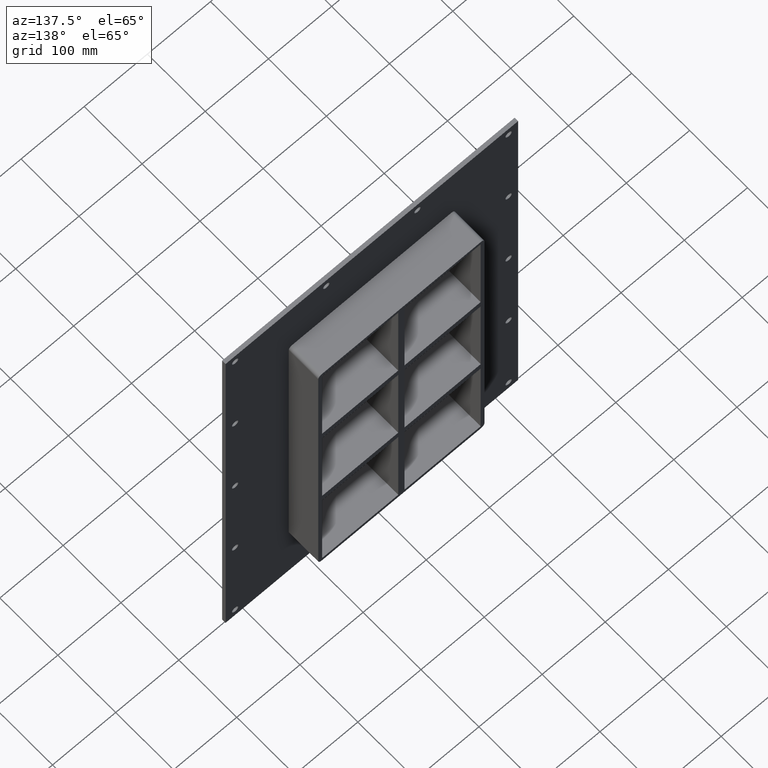
[diagram: clean part render]
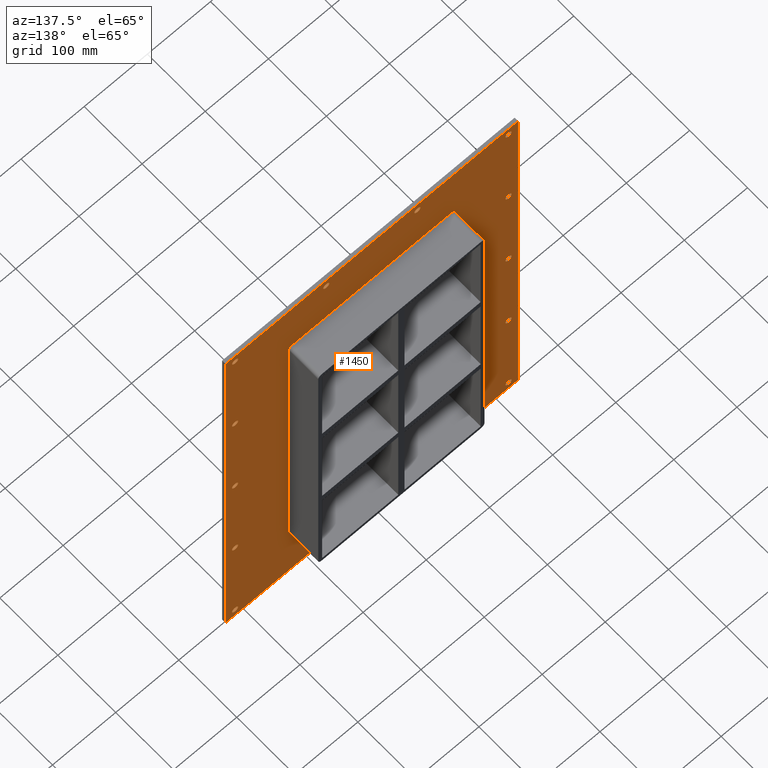
[diagram: same view with one face highlighted and labeled with its STEP entity id]
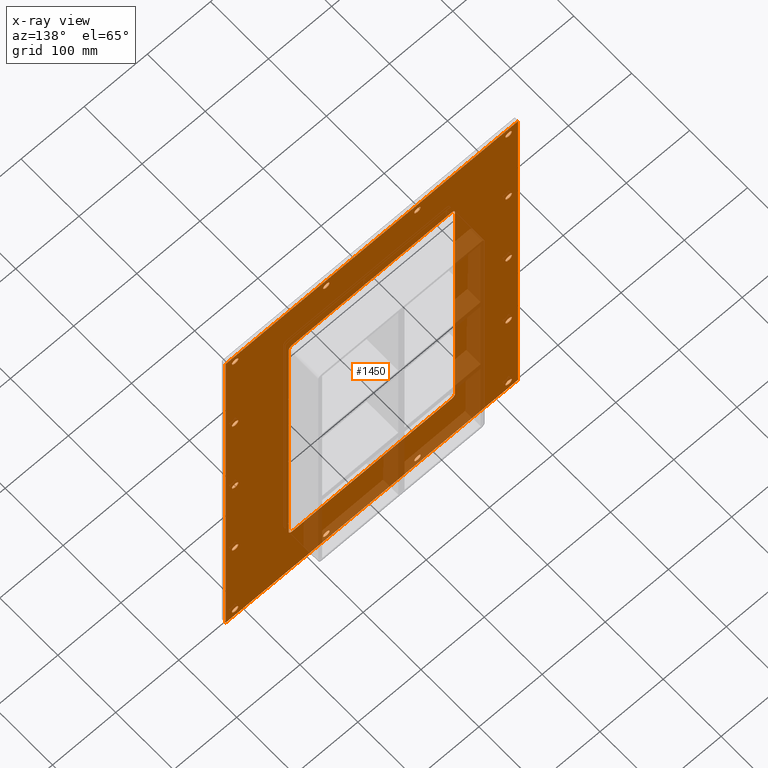
[diagram: x-ray of the same camera — body ghosted, the highlighted face saturated]
A machine part, auxiliary view. The second image highlights one B-rep face of the part: STEP entity #1450.
The next image is the same camera in x-ray: the body ghosted, the highlighted face saturated — about 16% of this face is hidden behind the body in this view.
In plain terms, the highlighted planar face has unit normal (0, 1, 0).
Its self-contained STEP definition (entity closure, byte-faithful):
#73=CARTESIAN_POINT('',(-221.50000000000009,5.999999999999943,-342.24999999999994));
#74=VERTEX_POINT('',#73);
#75=CARTESIAN_POINT('',(-216.50000000000009,5.999999999999943,-342.24999999999994));
#76=DIRECTION('',(0.0,-1.0,0.0));
#77=DIRECTION('',(1.0,0.0,0.0));
#78=AXIS2_PLACEMENT_3D('',#75,#76,#77);
#79=CIRCLE('',#78,5.0);
#80=EDGE_CURVE('',#74,#74,#79,.T.);
#101=CARTESIAN_POINT('',(211.39999999999998,5.999999999999943,-171.14999999999995));
#102=VERTEX_POINT('',#101);
#103=CARTESIAN_POINT('',(216.39999999999998,5.999999999999943,-171.14999999999995));
#104=DIRECTION('',(0.0,-1.0,0.0));
#105=DIRECTION('',(1.0,0.0,0.0));
#106=AXIS2_PLACEMENT_3D('',#103,#104,#105);
#107=CIRCLE('',#106,5.0);
#108=EDGE_CURVE('',#102,#102,#107,.T.);
#129=CARTESIAN_POINT('',(-221.50000000000009,5.999999999999943,-171.14999999999995));
#130=VERTEX_POINT('',#129);
#131=CARTESIAN_POINT('',(-216.50000000000009,5.999999999999943,-171.14999999999995));
#132=DIRECTION('',(0.0,-1.0,0.0));
#133=DIRECTION('',(1.0,0.0,0.0));
#134=AXIS2_PLACEMENT_3D('',#131,#132,#133);
#135=CIRCLE('',#134,5.0);
#136=EDGE_CURVE('',#130,#130,#135,.T.);
#157=CARTESIAN_POINT('',(211.39999999999998,5.999999999999943,-0.049999999999955));
#158=VERTEX_POINT('',#157);
#159=CARTESIAN_POINT('',(216.39999999999998,5.999999999999943,-0.049999999999955));
#160=DIRECTION('',(0.0,-1.0,0.0));
#161=DIRECTION('',(1.0,0.0,0.0));
#162=AXIS2_PLACEMENT_3D('',#159,#160,#161);
#163=CIRCLE('',#162,5.0);
#164=EDGE_CURVE('',#158,#158,#163,.T.);
#185=CARTESIAN_POINT('',(-221.50000000000009,5.999999999999943,-0.049999999999955));
#186=VERTEX_POINT('',#185);
#187=CARTESIAN_POINT('',(-216.50000000000009,5.999999999999943,-0.049999999999955));
#188=DIRECTION('',(0.0,-1.0,0.0));
#189=DIRECTION('',(1.0,0.0,0.0));
#190=AXIS2_PLACEMENT_3D('',#187,#188,#189);
#191=CIRCLE('',#190,5.0);
#192=EDGE_CURVE('',#186,#186,#191,.T.);
#213=CARTESIAN_POINT('',(211.39999999999998,5.999999999999943,171.05000000000004));
#214=VERTEX_POINT('',#213);
#215=CARTESIAN_POINT('',(216.39999999999998,5.999999999999943,171.05000000000004));
#216=DIRECTION('',(0.0,-1.0,0.0));
#217=DIRECTION('',(1.0,0.0,0.0));
#218=AXIS2_PLACEMENT_3D('',#215,#216,#217);
#219=CIRCLE('',#218,5.0);
#220=EDGE_CURVE('',#214,#214,#219,.T.);
#241=CARTESIAN_POINT('',(-221.50000000000009,5.999999999999943,171.05000000000004));
#242=VERTEX_POINT('',#241);
#243=CARTESIAN_POINT('',(-216.50000000000009,5.999999999999943,171.05000000000004));
#244=DIRECTION('',(0.0,-1.0,0.0));
#245=DIRECTION('',(1.0,0.0,0.0));
#246=AXIS2_PLACEMENT_3D('',#243,#244,#245);
#247=CIRCLE('',#246,5.0);
#248=EDGE_CURVE('',#242,#242,#247,.T.);
#269=CARTESIAN_POINT('',(-77.20000000000006,5.999999999999943,342.15000000000003));
#270=VERTEX_POINT('',#269);
#271=CARTESIAN_POINT('',(-72.20000000000006,5.999999999999943,342.15000000000003));
#272=DIRECTION('',(0.0,-1.0,0.0));
#273=DIRECTION('',(1.0,0.0,0.0));
#274=AXIS2_PLACEMENT_3D('',#271,#272,#273);
#275=CIRCLE('',#274,5.0);
#276=EDGE_CURVE('',#270,#270,#275,.T.);
#297=CARTESIAN_POINT('',(-77.20000000000006,5.999999999999943,-342.24999999999994));
#298=VERTEX_POINT('',#297);
#299=CARTESIAN_POINT('',(-72.20000000000006,5.999999999999943,-342.24999999999994));
#300=DIRECTION('',(0.0,-1.0,0.0));
#301=DIRECTION('',(1.0,0.0,0.0));
#302=AXIS2_PLACEMENT_3D('',#299,#300,#301);
#303=CIRCLE('',#302,5.0);
#304=EDGE_CURVE('',#298,#298,#303,.T.);
#325=CARTESIAN_POINT('',(67.099999999999952,5.999999999999943,342.15000000000003));
#326=VERTEX_POINT('',#325);
#327=CARTESIAN_POINT('',(72.099999999999952,5.999999999999943,342.15000000000003));
#328=DIRECTION('',(0.0,-1.0,0.0));
#329=DIRECTION('',(1.0,0.0,0.0));
#330=AXIS2_PLACEMENT_3D('',#327,#328,#329);
#331=CIRCLE('',#330,5.0);
#332=EDGE_CURVE('',#326,#326,#331,.T.);
#353=CARTESIAN_POINT('',(67.099999999999952,5.999999999999943,-342.24999999999994));
#354=VERTEX_POINT('',#353);
#355=CARTESIAN_POINT('',(72.099999999999952,5.999999999999943,-342.24999999999994));
#356=DIRECTION('',(0.0,-1.0,0.0));
#357=DIRECTION('',(1.0,0.0,0.0));
#358=AXIS2_PLACEMENT_3D('',#355,#356,#357);
#359=CIRCLE('',#358,5.0);
#360=EDGE_CURVE('',#354,#354,#359,.T.);
#381=CARTESIAN_POINT('',(211.39999999999998,5.999999999999943,-342.24999999999994));
#382=VERTEX_POINT('',#381);
#383=CARTESIAN_POINT('',(216.39999999999998,5.999999999999943,-342.24999999999994));
#384=DIRECTION('',(0.0,-1.0,0.0));
#385=DIRECTION('',(1.0,0.0,0.0));
#386=AXIS2_PLACEMENT_3D('',#383,#384,#385);
#387=CIRCLE('',#386,5.0);
#388=EDGE_CURVE('',#382,#382,#387,.T.);
#409=CARTESIAN_POINT('',(-221.50000000000009,5.999999999999943,342.15000000000003));
#410=VERTEX_POINT('',#409);
#411=CARTESIAN_POINT('',(-216.50000000000009,5.999999999999943,342.15000000000003));
#412=DIRECTION('',(0.0,-1.0,0.0));
#413=DIRECTION('',(1.0,0.0,0.0));
#414=AXIS2_PLACEMENT_3D('',#411,#412,#413);
#415=CIRCLE('',#414,5.0);
#416=EDGE_CURVE('',#410,#410,#415,.T.);
#437=CARTESIAN_POINT('',(211.39999999999998,5.999999999999943,342.15000000000003));
#438=VERTEX_POINT('',#437);
#439=CARTESIAN_POINT('',(216.39999999999998,5.999999999999943,342.15000000000003));
#440=DIRECTION('',(0.0,-1.0,0.0));
#441=DIRECTION('',(1.0,0.0,0.0));
#442=AXIS2_PLACEMENT_3D('',#439,#440,#441);
#443=CIRCLE('',#442,5.0);
#444=EDGE_CURVE('',#438,#438,#443,.T.);
#1299=CARTESIAN_POINT('',(-1.448240E-014,6.000000000000001,2.896480E-014));
#1300=DIRECTION('',(0.0,1.0,0.0));
#1301=DIRECTION('',(0.0,0.0,1.0));
#1302=AXIS2_PLACEMENT_3D('',#1299,#1300,#1301);
#1303=PLANE('',#1302);
#1304=CARTESIAN_POINT('',(-231.50000000000003,6.000000000000001,357.25));
#1305=VERTEX_POINT('',#1304);
#1306=CARTESIAN_POINT('',(231.49999999999994,6.000000000000001,357.25));
#1307=VERTEX_POINT('',#1306);
#1308=CARTESIAN_POINT('',(-231.50000000000003,6.000000000000001,357.25));
#1309=DIRECTION('',(1.0,0.0,0.0));
#1310=VECTOR('',#1309,463.0);
#1311=LINE('',#1308,#1310);
#1312=EDGE_CURVE('',#1305,#1307,#1311,.T.);
#1313=ORIENTED_EDGE('',*,*,#1312,.T.);
#1314=CARTESIAN_POINT('',(231.49999999999994,6.000000000000001,-357.24999999999989));
#1315=VERTEX_POINT('',#1314);
#1316=CARTESIAN_POINT('',(231.5,6.000000000000001,357.25));
#1317=DIRECTION('',(0.0,0.0,-1.0));
#1318=VECTOR('',#1317,714.49999999999989);
#1319=LINE('',#1316,#1318);
#1320=EDGE_CURVE('',#1307,#1315,#1319,.T.);
#1321=ORIENTED_EDGE('',*,*,#1320,.T.);
#1322=CARTESIAN_POINT('',(-231.50000000000003,6.000000000000001,-357.24999999999989));
#1323=VERTEX_POINT('',#1322);
#1324=CARTESIAN_POINT('',(231.5,6.000000000000001,-357.24999999999994));
#1325=DIRECTION('',(-1.0,0.0,0.0));
#1326=VECTOR('',#1325,463.0);
#1327=LINE('',#1324,#1326);
#1328=EDGE_CURVE('',#1315,#1323,#1327,.T.);
#1329=ORIENTED_EDGE('',*,*,#1328,.T.);
#1330=CARTESIAN_POINT('',(-231.50000000000003,6.000000000000001,-357.24999999999994));
#1331=DIRECTION('',(0.0,0.0,1.0));
#1332=VECTOR('',#1331,714.49999999999989);
#1333=LINE('',#1330,#1332);
#1334=EDGE_CURVE('',#1323,#1305,#1333,.T.);
#1335=ORIENTED_EDGE('',*,*,#1334,.T.);
#1336=EDGE_LOOP('',(#1313,#1321,#1329,#1335));
#1337=FACE_OUTER_BOUND('',#1336,.T.);
#1338=ORIENTED_EDGE('',*,*,#80,.T.);
#1339=EDGE_LOOP('',(#1338));
#1340=FACE_BOUND('',#1339,.T.);
#1341=ORIENTED_EDGE('',*,*,#108,.T.);
#1342=EDGE_LOOP('',(#1341));
#1343=FACE_BOUND('',#1342,.T.);
#1344=ORIENTED_EDGE('',*,*,#136,.T.);
#1345=EDGE_LOOP('',(#1344));
#1346=FACE_BOUND('',#1345,.T.);
#1347=ORIENTED_EDGE('',*,*,#164,.T.);
#1348=EDGE_LOOP('',(#1347));
#1349=FACE_BOUND('',#1348,.T.);
#1350=ORIENTED_EDGE('',*,*,#192,.T.);
#1351=EDGE_LOOP('',(#1350));
#1352=FACE_BOUND('',#1351,.T.);
#1353=ORIENTED_EDGE('',*,*,#220,.T.);
#1354=EDGE_LOOP('',(#1353));
#1355=FACE_BOUND('',#1354,.T.);
#1356=ORIENTED_EDGE('',*,*,#248,.T.);
#1357=EDGE_LOOP('',(#1356));
#1358=FACE_BOUND('',#1357,.T.);
#1359=ORIENTED_EDGE('',*,*,#276,.T.);
#1360=EDGE_LOOP('',(#1359));
#1361=FACE_BOUND('',#1360,.T.);
#1362=ORIENTED_EDGE('',*,*,#304,.T.);
#1363=EDGE_LOOP('',(#1362));
#1364=FACE_BOUND('',#1363,.T.);
#1365=ORIENTED_EDGE('',*,*,#332,.T.);
#1366=EDGE_LOOP('',(#1365));
#1367=FACE_BOUND('',#1366,.T.);
#1368=ORIENTED_EDGE('',*,*,#360,.T.);
#1369=EDGE_LOOP('',(#1368));
#1370=FACE_BOUND('',#1369,.T.);
#1371=ORIENTED_EDGE('',*,*,#388,.T.);
#1372=EDGE_LOOP('',(#1371));
#1373=FACE_BOUND('',#1372,.T.);
#1374=ORIENTED_EDGE('',*,*,#416,.T.);
#1375=EDGE_LOOP('',(#1374));
#1376=FACE_BOUND('',#1375,.T.);
#1377=ORIENTED_EDGE('',*,*,#444,.T.);
#1378=EDGE_LOOP('',(#1377));
#1379=FACE_BOUND('',#1378,.T.);
#1380=CARTESIAN_POINT('',(-125.5,6.000000000000001,-257.25));
#1381=VERTEX_POINT('',#1380);
#1382=CARTESIAN_POINT('',(-131.5,6.000000000000001,-251.25));
#1383=VERTEX_POINT('',#1382);
#1384=CARTESIAN_POINT('',(-125.5,6.000000000000001,-251.25));
#1385=DIRECTION('',(0.0,1.0,0.0));
#1386=DIRECTION('',(-0.707106781186548,0.0,-0.707106781186548));
#1387=AXIS2_PLACEMENT_3D('',#1384,#1385,#1386);
#1388=CIRCLE('',#1387,6.000000000000002);
#1389=EDGE_CURVE('',#1381,#1383,#1388,.T.);
#1390=ORIENTED_EDGE('',*,*,#1389,.F.);
#1391=CARTESIAN_POINT('',(125.5,6.000000000000001,-257.25));
#1392=VERTEX_POINT('',#1391);
#1393=CARTESIAN_POINT('',(125.50000000000001,6.000000000000001,-257.25));
#1394=DIRECTION('',(-1.0,0.0,0.0));
#1395=VECTOR('',#1394,251.0);
#1396=LINE('',#1393,#1395);
#1397=EDGE_CURVE('',#1392,#1381,#1396,.T.);
#1398=ORIENTED_EDGE('',*,*,#1397,.F.);
#1399=CARTESIAN_POINT('',(131.5,6.000000000000001,-251.25));
#1400=VERTEX_POINT('',#1399);
#1401=CARTESIAN_POINT('',(125.5,6.000000000000001,-251.25));
#1402=DIRECTION('',(0.0,1.0,0.0));
#1403=DIRECTION('',(0.707106781186548,0.0,-0.707106781186548));
#1404=AXIS2_PLACEMENT_3D('',#1401,#1402,#1403);
#1405=CIRCLE('',#1404,6.000000000000002);
#1406=EDGE_CURVE('',#1400,#1392,#1405,.T.);
#1407=ORIENTED_EDGE('',*,*,#1406,.F.);
#1408=CARTESIAN_POINT('',(131.5,6.000000000000001,251.25));
#1409=VERTEX_POINT('',#1408);
#1410=CARTESIAN_POINT('',(131.5,6.000000000000001,251.25));
#1411=DIRECTION('',(0.0,0.0,-1.0));
#1412=VECTOR('',#1411,502.5);
#1413=LINE('',#1410,#1412);
#1414=EDGE_CURVE('',#1409,#1400,#1413,.T.);
#1415=ORIENTED_EDGE('',*,*,#1414,.F.);
#1416=CARTESIAN_POINT('',(125.5,6.000000000000001,257.25));
#1417=VERTEX_POINT('',#1416);
#1418=CARTESIAN_POINT('',(125.5,6.000000000000001,251.25));
#1419=DIRECTION('',(0.0,1.0,0.0));
#1420=DIRECTION('',(0.707106781186548,0.0,0.707106781186548));
#1421=AXIS2_PLACEMENT_3D('',#1418,#1419,#1420);
#1422=CIRCLE('',#1421,6.000000000000002);
#1423=EDGE_CURVE('',#1417,#1409,#1422,.T.);
#1424=ORIENTED_EDGE('',*,*,#1423,.F.);
#1425=CARTESIAN_POINT('',(-125.5,6.000000000000001,257.25));
#1426=VERTEX_POINT('',#1425);
#1427=CARTESIAN_POINT('',(-125.50000000000001,6.000000000000001,257.25));
#1428=DIRECTION('',(1.0,0.0,0.0));
#1429=VECTOR('',#1428,251.0);
#1430=LINE('',#1427,#1429);
#1431=EDGE_CURVE('',#1426,#1417,#1430,.T.);
#1432=ORIENTED_EDGE('',*,*,#1431,.F.);
#1433=CARTESIAN_POINT('',(-131.5,6.000000000000001,251.25));
#1434=VERTEX_POINT('',#1433);
#1435=CARTESIAN_POINT('',(-125.5,6.000000000000001,251.25));
#1436=DIRECTION('',(0.0,1.0,0.0));
#1437=DIRECTION('',(-0.707106781186548,0.0,0.707106781186548));
#1438=AXIS2_PLACEMENT_3D('',#1435,#1436,#1437);
#1439=CIRCLE('',#1438,6.000000000000002);
#1440=EDGE_CURVE('',#1434,#1426,#1439,.T.);
#1441=ORIENTED_EDGE('',*,*,#1440,.F.);
#1442=CARTESIAN_POINT('',(-131.5,6.000000000000001,-251.25));
#1443=DIRECTION('',(0.0,0.0,1.0));
#1444=VECTOR('',#1443,502.5);
#1445=LINE('',#1442,#1444);
#1446=EDGE_CURVE('',#1383,#1434,#1445,.T.);
#1447=ORIENTED_EDGE('',*,*,#1446,.F.);
#1448=EDGE_LOOP('',(#1390,#1398,#1407,#1415,#1424,#1432,#1441,#1447));
#1449=FACE_BOUND('',#1448,.T.);
#1450=ADVANCED_FACE('',(#1337,#1340,#1343,#1346,#1349,#1352,#1355,#1358,#1361,#1364,#1367,#1370,#1373,#1376,#1379,#1449),#1303,.T.);